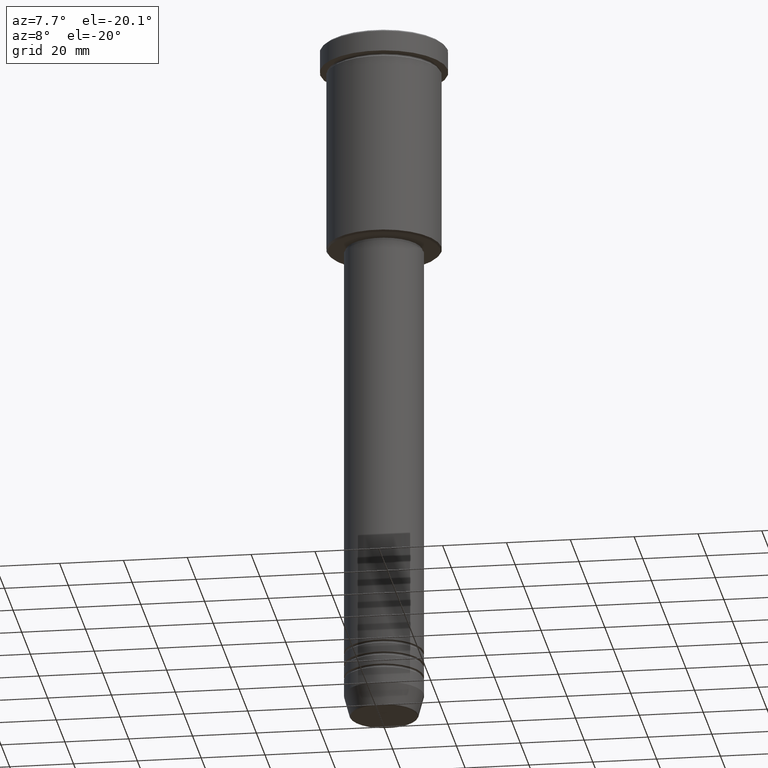
[diagram: clean part render]
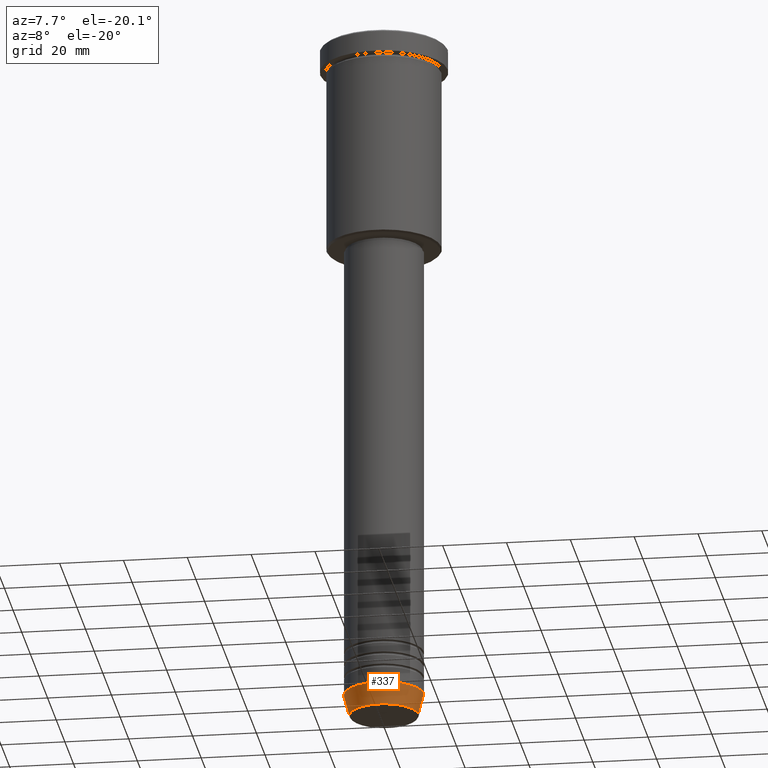
[diagram: same view with one face highlighted and labeled with its STEP entity id]
A machine part, auxiliary view. The second image highlights one B-rep face of the part: STEP entity #337.
In plain terms, the highlighted conical surface has half-angle 15 deg.
Its self-contained STEP definition (entity closure, byte-faithful):
#81 = VERTEX_POINT ( 'NONE', #517 ) ;
#108 = CARTESIAN_POINT ( 'NONE',  ( -12.50000000000000000, 1.530808498934191521E-15, -213.0000000000000000 ) ) ;
#117 = EDGE_CURVE ( 'NONE', #451, #1064, #585, .T. ) ;
#148 = AXIS2_PLACEMENT_3D ( 'NONE', #415, #399, #700 ) ;
#150 = CARTESIAN_POINT ( 'NONE',  ( 0.000000000000000000, 0.000000000000000000, -213.0000000000000000 ) ) ;
#151 = CARTESIAN_POINT ( 'NONE',  ( 12.50000000000000000, 0.000000000000000000, -213.0000000000000000 ) ) ;
#178 = ORIENTED_EDGE ( 'NONE', *, *, #117, .T. ) ;
#208 = CONICAL_SURFACE ( 'NONE', #148, 12.50000000000000000, 0.2617993877991500740 ) ;
#212 = CARTESIAN_POINT ( 'NONE',  ( 0.000000000000000000, 0.000000000000000000, -219.6294095225512422 ) ) ;
#219 = CIRCLE ( 'NONE', #701, 12.50000000000000000 ) ;
#243 = VECTOR ( 'NONE', #910, 1000.000000000000000 ) ;
#294 = DIRECTION ( 'NONE',  ( -0.2588190451025213501, 3.169619151431772337E-17, 0.9659258262890680902 ) ) ;
#331 = VECTOR ( 'NONE', #294, 1000.000000000000000 ) ;
#334 = CARTESIAN_POINT ( 'NONE',  ( -12.50000000000000000, 1.530808498934191521E-15, -213.0000000000000000 ) ) ;
#337 = ADVANCED_FACE ( 'NONE', ( #1049 ), #208, .T. ) ;
#341 = EDGE_LOOP ( 'NONE', ( #864, #438, #178, #922 ) ) ;
#384 = DIRECTION ( 'NONE',  ( -0.000000000000000000, -0.000000000000000000, 1.000000000000000000 ) ) ;
#399 = DIRECTION ( 'NONE',  ( -0.000000000000000000, -0.000000000000000000, 1.000000000000000000 ) ) ;
#415 = CARTESIAN_POINT ( 'NONE',  ( 0.000000000000000000, 0.000000000000000000, -213.0000000000000000 ) ) ;
#428 = EDGE_CURVE ( 'NONE', #81, #499, #643, .T. ) ;
#438 = ORIENTED_EDGE ( 'NONE', *, *, #575, .T. ) ;
#451 = VERTEX_POINT ( 'NONE', #667 ) ;
#499 = VERTEX_POINT ( 'NONE', #334 ) ;
#509 = DIRECTION ( 'NONE',  ( -0.000000000000000000, -0.000000000000000000, 1.000000000000000000 ) ) ;
#517 = CARTESIAN_POINT ( 'NONE',  ( -10.72365507213719127, 1.422038742429750516E-15, -219.6294095225512422 ) ) ;
#575 = EDGE_CURVE ( 'NONE', #81, #451, #806, .T. ) ;
#585 = LINE ( 'NONE', #151, #243 ) ;
#643 = LINE ( 'NONE', #108, #331 ) ;
#667 = CARTESIAN_POINT ( 'NONE',  ( 10.72365507213719127, 0.000000000000000000, -219.6294095225512422 ) ) ;
#700 = DIRECTION ( 'NONE',  ( 1.000000000000000000, 0.000000000000000000, 0.000000000000000000 ) ) ;
#701 = AXIS2_PLACEMENT_3D ( 'NONE', #150, #509, #891 ) ;
#756 = EDGE_CURVE ( 'NONE', #499, #1064, #219, .T. ) ;
#765 = DIRECTION ( 'NONE',  ( 1.000000000000000000, 0.000000000000000000, 0.000000000000000000 ) ) ;
#806 = CIRCLE ( 'NONE', #942, 10.72365507213719127 ) ;
#864 = ORIENTED_EDGE ( 'NONE', *, *, #428, .F. ) ;
#891 = DIRECTION ( 'NONE',  ( 1.000000000000000000, 0.000000000000000000, 0.000000000000000000 ) ) ;
#910 = DIRECTION ( 'NONE',  ( 0.2588190451025213501, 0.000000000000000000, 0.9659258262890680902 ) ) ;
#911 = CARTESIAN_POINT ( 'NONE',  ( 12.50000000000000000, 0.000000000000000000, -213.0000000000000000 ) ) ;
#922 = ORIENTED_EDGE ( 'NONE', *, *, #756, .F. ) ;
#942 = AXIS2_PLACEMENT_3D ( 'NONE', #212, #384, #765 ) ;
#1049 = FACE_OUTER_BOUND ( 'NONE', #341, .T. ) ;
#1064 = VERTEX_POINT ( 'NONE', #911 ) ;